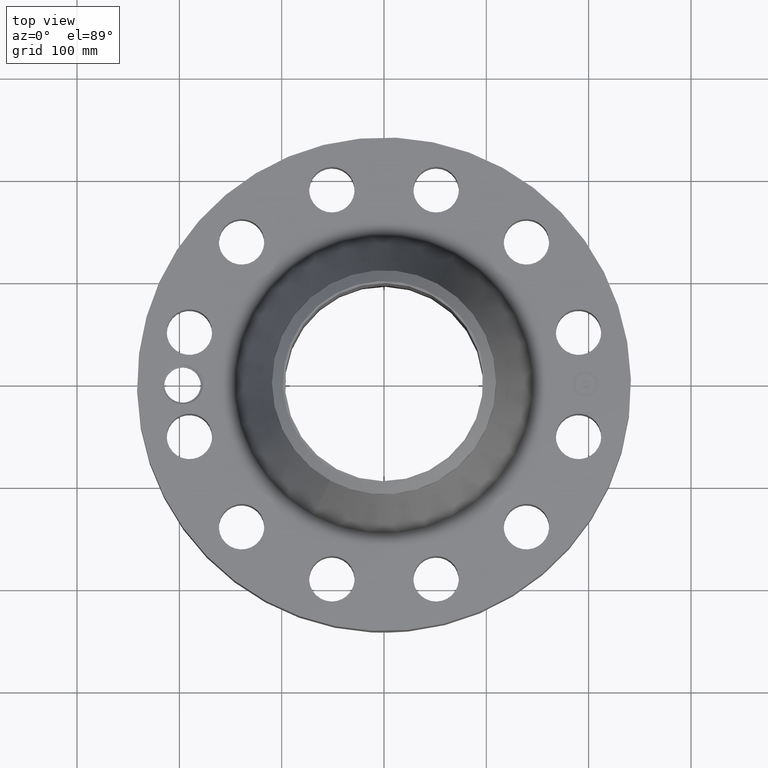
[diagram: clean part render]
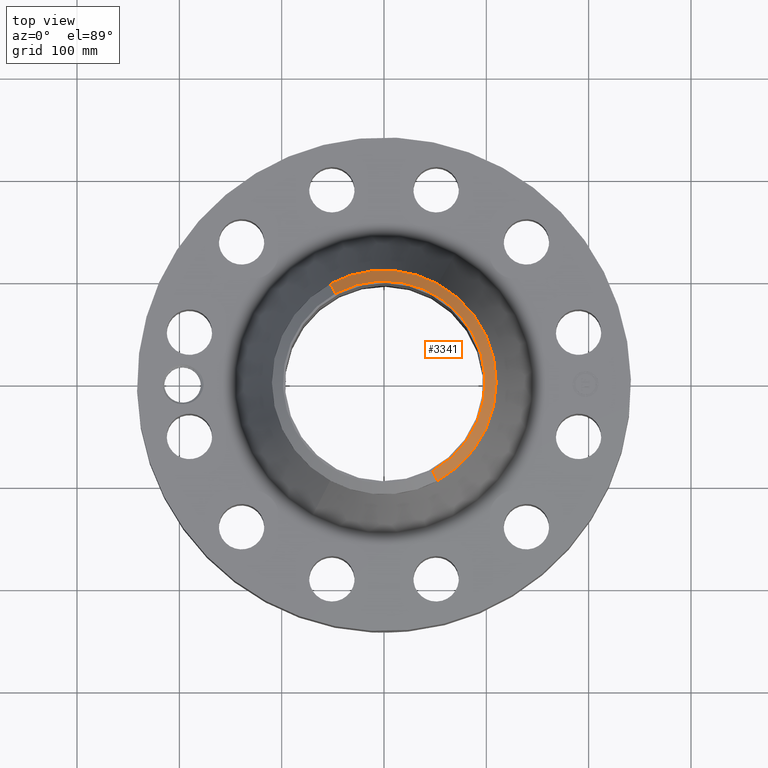
[diagram: same view with one face highlighted and labeled with its STEP entity id]
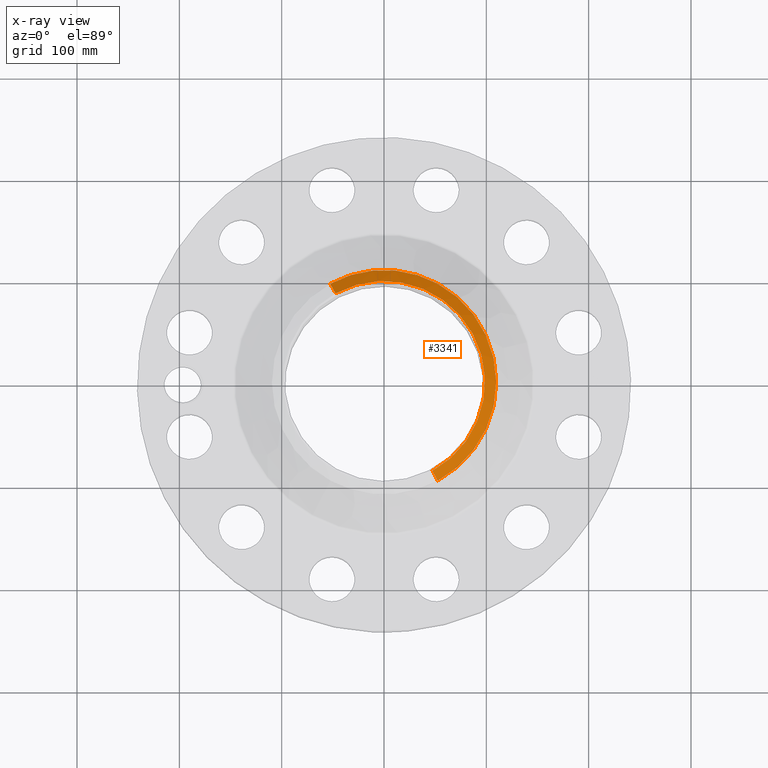
[diagram: x-ray of the same camera — body ghosted, the highlighted face saturated]
A machine part, top view. The second image highlights one B-rep face of the part: STEP entity #3341.
The next image is the same camera in x-ray: the body ghosted, the highlighted face saturated — about 0% of this face is hidden behind the body in this view.
In plain terms, the highlighted conical surface has half-angle 52.5 deg.
Its self-contained STEP definition (entity closure, byte-faithful):
#2484=AXIS2_PLACEMENT_3D('Circle Axis2P3D',#2482,#2483,$) ;
#3286=AXIS2_PLACEMENT_3D('Cone Axis2P3D',#3283,#3284,#3285) ;
#3324=AXIS2_PLACEMENT_3D('Circle Axis2P3D',#3322,#3323,$) ;
#3331=AXIS2_PLACEMENT_3D('Circle Axis2P3D',#3329,#3330,$) ;
#2482=CARTESIAN_POINT('Axis2P3D Location',(0.,0.,8.63000000003)) ;
#2486=CARTESIAN_POINT('Vertex',(1.86555990835,-3.41488450635,8.63000000003)) ;
#2488=CARTESIAN_POINT('Vertex',(-1.86555990835,3.41488450635,8.63000000003)) ;
#3283=CARTESIAN_POINT('Axis2P3D Location',(0.,0.,8.63000000003)) ;
#3288=CARTESIAN_POINT('Line Origine',(1.96714055372,-3.60082663046,8.46741881824)) ;
#3292=CARTESIAN_POINT('Vertex',(2.06872119909,-3.78676875457,8.30483763645)) ;
#3295=CARTESIAN_POINT('Line Origine',(-1.96714055372,3.60082663046,8.46741881824)) ;
#3299=CARTESIAN_POINT('Vertex',(-2.06872119909,3.78676875457,8.30483763645)) ;
#3322=CARTESIAN_POINT('Axis2P3D Location',(0.,0.,8.30483763645)) ;
#3326=CARTESIAN_POINT('Vertex',(2.06872119909,3.78676875457,8.30483763645)) ;
#3329=CARTESIAN_POINT('Axis2P3D Location',(0.,0.,8.30483763645)) ;
#2483=DIRECTION('Axis2P3D Direction',(0.,0.,-0.0393700787402)) ;
#3284=DIRECTION('Axis2P3D Direction',(-0.,-0.,-0.0393700787402)) ;
#3285=DIRECTION('Axis2P3D XDirection',(-0.0188750212049,0.0345504945626,0.)) ;
#3289=DIRECTION('Vector Direction',(0.014974561121,-0.02741075027,-0.023966985394)) ;
#3296=DIRECTION('Vector Direction',(-0.014974561121,0.02741075027,-0.023966985394)) ;
#3323=DIRECTION('Axis2P3D Direction',(0.,0.,-0.0393700787402)) ;
#3330=DIRECTION('Axis2P3D Direction',(0.,0.,-0.0393700787402)) ;
#3290=VECTOR('Line Direction',#3289,0.0393700787402) ;
#3297=VECTOR('Line Direction',#3296,0.0393700787402) ;
#3335=ORIENTED_EDGE('',*,*,#3301,.F.) ;
#3336=ORIENTED_EDGE('',*,*,#2490,.F.) ;
#3337=ORIENTED_EDGE('',*,*,#3294,.T.) ;
#3338=ORIENTED_EDGE('',*,*,#3328,.T.) ;
#3339=ORIENTED_EDGE('',*,*,#3333,.F.) ;
#3341=ADVANCED_FACE('PartBody',(#3340),#3287,.T.) ;
#2485=CIRCLE('generated circle',#2484,3.8912401575) ;
#3325=CIRCLE('generated circle',#3324,4.31500000002) ;
#3332=CIRCLE('generated circle',#3331,4.31500000002) ;
#3287=CONICAL_SURFACE('Cone',#3286,3.8912401575,0.916297857297) ;
#2490=EDGE_CURVE('',#2487,#2489,#2485,.F.) ;
#3294=EDGE_CURVE('',#2487,#3293,#3291,.T.) ;
#3301=EDGE_CURVE('',#2489,#3300,#3298,.T.) ;
#3328=EDGE_CURVE('',#3293,#3327,#3325,.F.) ;
#3333=EDGE_CURVE('',#3300,#3327,#3332,.T.) ;
#3334=EDGE_LOOP('',(#3335,#3336,#3337,#3338,#3339)) ;
#3340=FACE_OUTER_BOUND('',#3334,.T.) ;
#3291=LINE('Line',#3288,#3290) ;
#3298=LINE('Line',#3295,#3297) ;
#2487=VERTEX_POINT('',#2486) ;
#2489=VERTEX_POINT('',#2488) ;
#3293=VERTEX_POINT('',#3292) ;
#3300=VERTEX_POINT('',#3299) ;
#3327=VERTEX_POINT('',#3326) ;